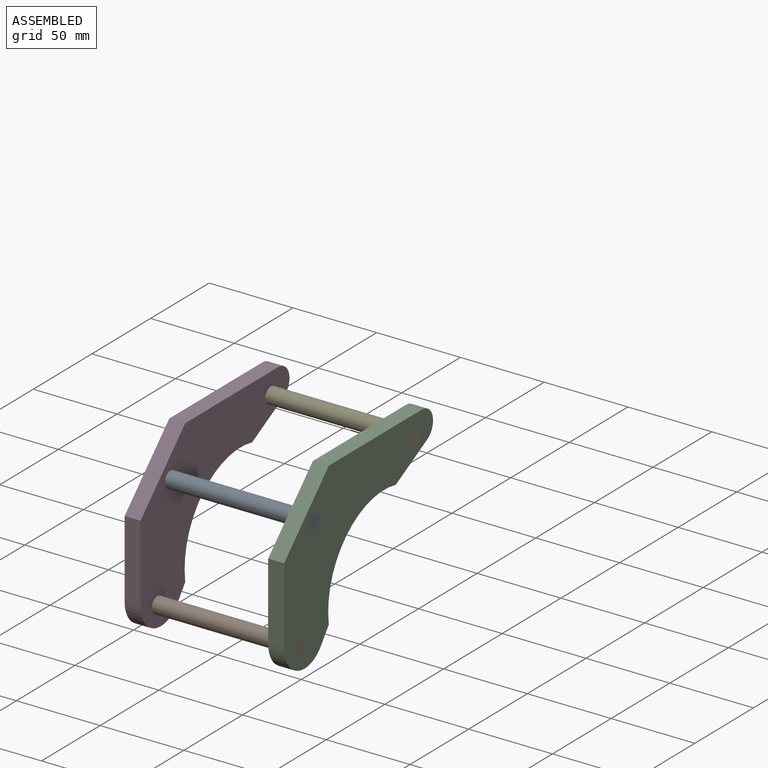
[diagram: assembled view]
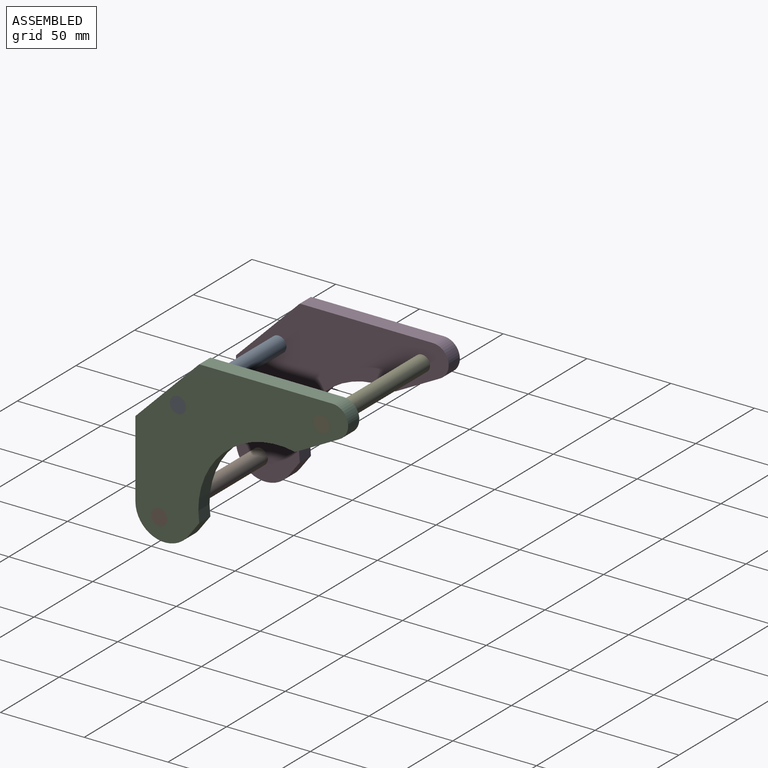
[diagram: assembled view, second angle]
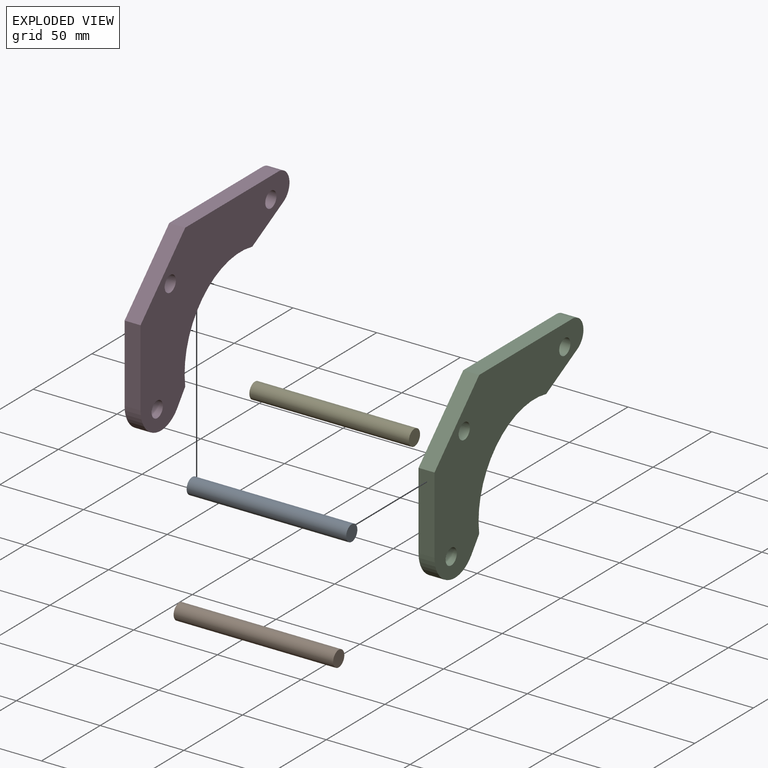
[diagram: exploded view]
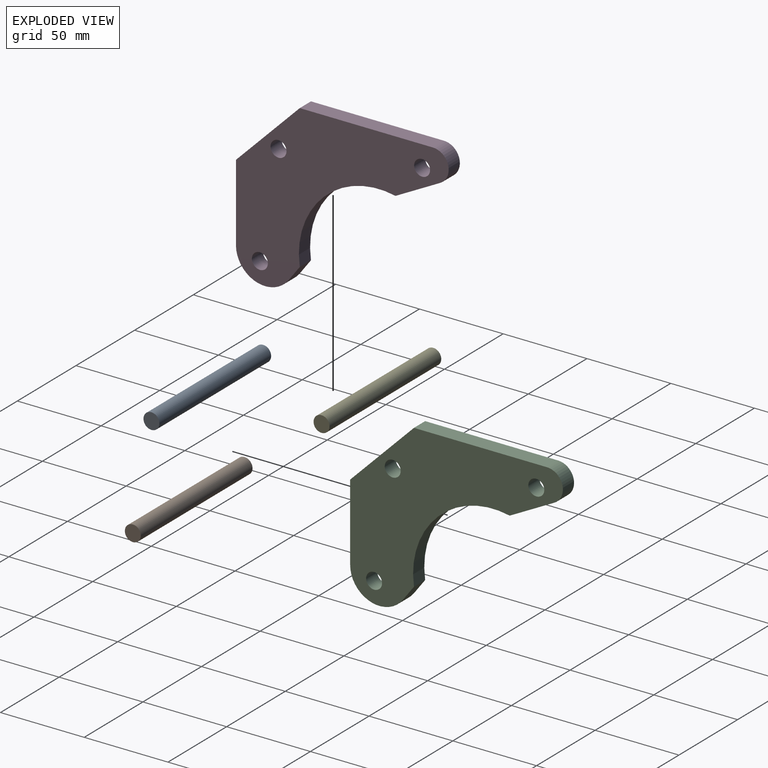
[diagram: exploded view, second angle]
ASSEMBLY  parts=5 mates=2
PART A: 3 faces, bbox 95.3x9.5x9.5 mm
  f0: cylinder r=4.76mm len=95.25mm, axis (-1,0,0), area 2850.2mm2, adj f1,f2
  f1: plane 9.53x9.53mm, normal (1,0,0), area 71.3mm2, adj f0
  f2: plane 9.53x9.53mm, normal (-1,0,0), area 71.3mm2, adj f0
PART B: same geometry as A
PART C: 13 faces, bbox 9.5x127x101.6 mm
  f0: plane 79.38x9.53mm, normal (0,0,1), area 756mm2, adj f1,f9,f11,f12
  f1: cylinder r=9.53mm len=17.94mm, axis (-1,0,0), area 240.8mm2, adj f0,f2,f11,f12
  f2: plane 26.68x14.14mm, normal (0,0.47,-0.88), area 287.6mm2, adj f1,f3,f11,f12
  f3: cylinder r=47.62mm len=57.68mm, axis (-1,0,0), area 876.9mm2, adj f2,f4,f11,f12
  f4: plane 9.53x8.89mm, normal (0,0.8,-0.6), area 105.8mm2, adj f3,f5,f11,f12
  f5: cylinder r=17.46mm len=31.43mm, axis (-1,0,0), area 415.5mm2, adj f4,f6,f11,f12
  f6: plane 46.04x9.53mm, normal (0,-1,0), area 438.5mm2, adj f5,f9,f11,f12
  f7: cylinder r=4.76mm len=9.53mm, axis (-1,0,0), area 285mm2, adj f11,f12
  f8: cylinder r=4.76mm len=9.53mm, axis (-1,0,0), area 285mm2, adj f11,f12
  f9: plane 38.1x38.1mm, normal (0,-0.71,0.71), area 513.2mm2, adj f0,f6,f11,f12
  f10: cylinder r=4.76mm len=9.53mm, axis (-1,0,0), area 285mm2, adj f11,f12
  f11: plane 127x101.6mm, normal (1,0,0), area 5721.3mm2, adj f0,f1,f2,f3,f4,f5,f6,f7
  f12: plane 127x101.6mm, normal (-1,0,0), area 5721.3mm2, adj f0,f1,f2,f3,f4,f5,f6,f7
PART D: same geometry as C
PART E: same geometry as A
PLACE A t=(0,-136.52,-88.9)mm
PLACE B t=(0,-147.64,-152.4)mm
PLACE C t=(85.73,-50.8,-76.2)mm
PLACE D t=(0,-50.8,-76.2)mm
PLACE E t=(0,-50.8,-76.2)mm fixed
MATE fastened D.f7 <-> B.f0  axis (-1,0,0) through (-47.63,-96.84,-76.2)mm
MATE fastened D.f8 <-> A.f0  axis (-1,0,0) through (-47.63,-85.72,-12.7)mm
